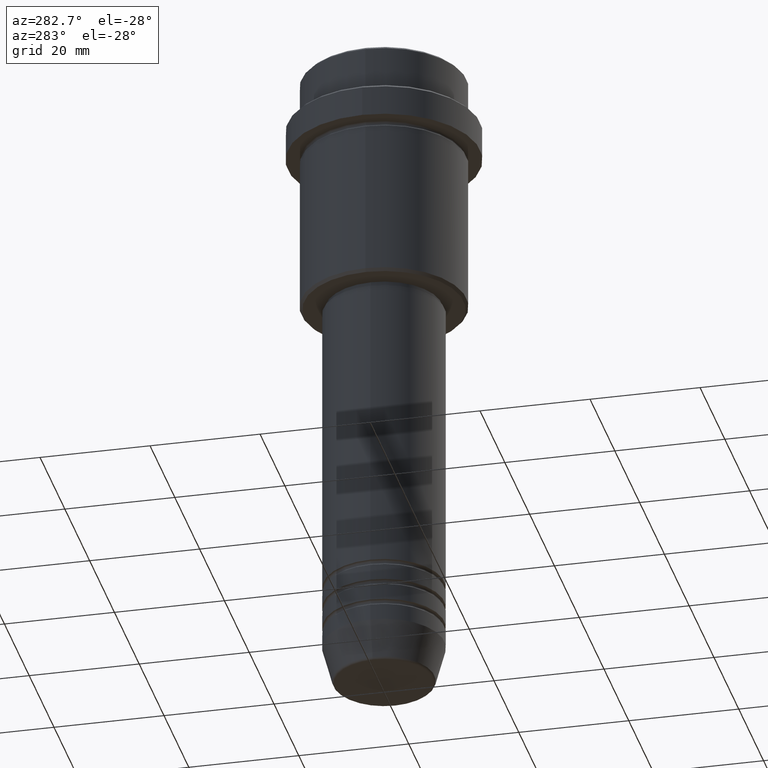
[diagram: clean part render]
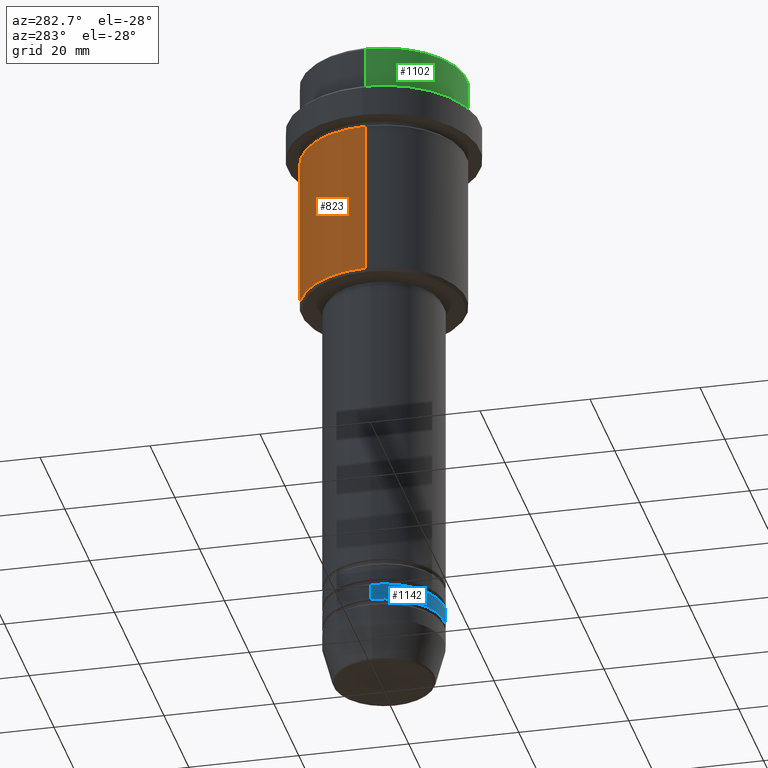
[diagram: same view with three faces highlighted in distinct colors, each labeled with its STEP entity id]
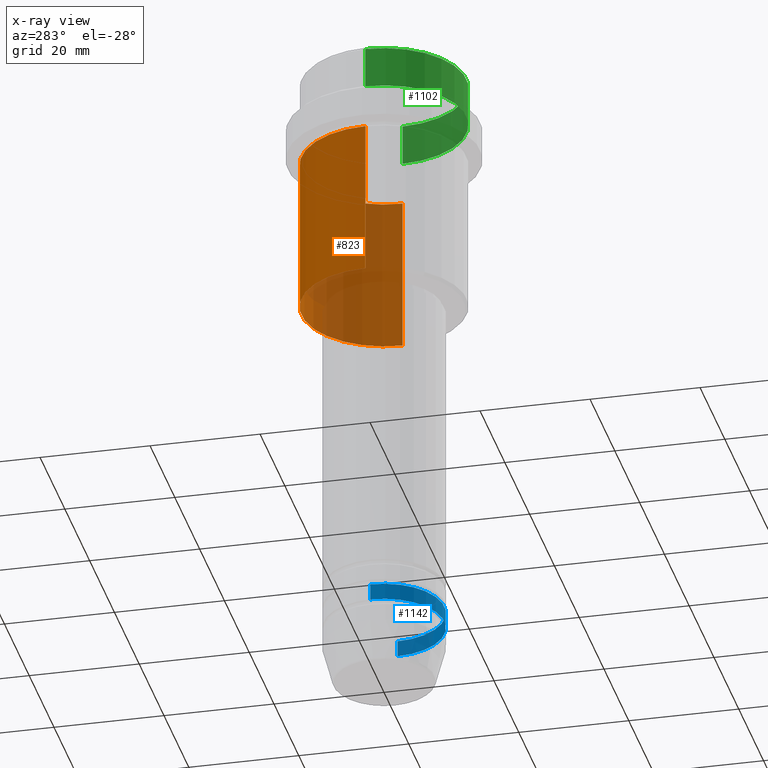
[diagram: x-ray of the same camera — body ghosted, the three highlighted faces saturated]
A machine part, auxiliary view with three faces highlighted in distinct colors.
The next image is the same camera in x-ray (body ghosted, the three faces saturated) — at least one of them is partly hidden behind the body in this view.
Their STEP definitions:

[orange] entity #823 — the highlighted cylindrical surface (partial cylindrical patch) has radius 15 mm, axis along (-0, -0, 1).
#44 = VERTEX_POINT ( 'NONE', #515 ) ;
#83 = CARTESIAN_POINT ( 'NONE',  ( 0.000000000000000000, 0.000000000000000000, 0.000000000000000000 ) ) ;
#87 = ORIENTED_EDGE ( 'NONE', *, *, #766, .F. ) ;
#105 = CARTESIAN_POINT ( 'NONE',  ( 15.00000000000000000, 0.000000000000000000, -44.50000000000001421 ) ) ;
#124 = AXIS2_PLACEMENT_3D ( 'NONE', #83, #1039, #1277 ) ;
#154 = CARTESIAN_POINT ( 'NONE',  ( 0.000000000000000000, 0.000000000000000000, -44.50000000000001421 ) ) ;
#185 = VECTOR ( 'NONE', #1313, 1000.000000000000000 ) ;
#230 = VERTEX_POINT ( 'NONE', #105 ) ;
#235 = AXIS2_PLACEMENT_3D ( 'NONE', #355, #247, #681 ) ;
#247 = DIRECTION ( 'NONE',  ( -0.000000000000000000, -0.000000000000000000, 1.000000000000000000 ) ) ;
#252 = DIRECTION ( 'NONE',  ( -1.000000000000000000, 0.000000000000000000, 0.000000000000000000 ) ) ;
#282 = CARTESIAN_POINT ( 'NONE',  ( 15.00000000000000000, 0.000000000000000000, 0.000000000000000000 ) ) ;
#324 = AXIS2_PLACEMENT_3D ( 'NONE', #154, #1029, #252 ) ;
#355 = CARTESIAN_POINT ( 'NONE',  ( 0.000000000000000000, 0.000000000000000000, -16.00000000000000000 ) ) ;
#402 = EDGE_LOOP ( 'NONE', ( #640, #1240, #87, #1253 ) ) ;
#412 = VERTEX_POINT ( 'NONE', #599 ) ;
#420 = EDGE_CURVE ( 'NONE', #230, #44, #739, .T. ) ;
#429 = CARTESIAN_POINT ( 'NONE',  ( -15.00000000000000000, 1.836970198721029589E-15, 0.000000000000000000 ) ) ;
#514 = CARTESIAN_POINT ( 'NONE',  ( -15.00000000000000355, 1.836970198721029983E-15, -16.00000000000000000 ) ) ;
#515 = CARTESIAN_POINT ( 'NONE',  ( 15.00000000000000178, 0.000000000000000000, -16.00000000000000000 ) ) ;
#599 = CARTESIAN_POINT ( 'NONE',  ( -15.00000000000000000, 1.836970198721029589E-15, -44.50000000000001421 ) ) ;
#640 = ORIENTED_EDGE ( 'NONE', *, *, #799, .T. ) ;
#655 = EDGE_CURVE ( 'NONE', #412, #1385, #1092, .T. ) ;
#681 = DIRECTION ( 'NONE',  ( 1.000000000000000000, 0.000000000000000000, 0.000000000000000000 ) ) ;
#739 = LINE ( 'NONE', #282, #1397 ) ;
#766 = EDGE_CURVE ( 'NONE', #44, #1385, #849, .T. ) ;
#799 = EDGE_CURVE ( 'NONE', #230, #412, #940, .T. ) ;
#818 = DIRECTION ( 'NONE',  ( -0.000000000000000000, -0.000000000000000000, 1.000000000000000000 ) ) ;
#823 = ADVANCED_FACE ( 'NONE', ( #1003 ), #837, .T. ) ;
#837 = CYLINDRICAL_SURFACE ( 'NONE', #124, 15.00000000000000000 ) ;
#849 = CIRCLE ( 'NONE', #235, 15.00000000000000178 ) ;
#940 = CIRCLE ( 'NONE', #324, 15.00000000000000000 ) ;
#1003 = FACE_OUTER_BOUND ( 'NONE', #402, .T. ) ;
#1029 = DIRECTION ( 'NONE',  ( -0.000000000000000000, -0.000000000000000000, 1.000000000000000000 ) ) ;
#1039 = DIRECTION ( 'NONE',  ( -0.000000000000000000, -0.000000000000000000, 1.000000000000000000 ) ) ;
#1092 = LINE ( 'NONE', #429, #185 ) ;
#1240 = ORIENTED_EDGE ( 'NONE', *, *, #655, .T. ) ;
#1253 = ORIENTED_EDGE ( 'NONE', *, *, #420, .F. ) ;
#1277 = DIRECTION ( 'NONE',  ( 1.000000000000000000, 0.000000000000000000, 0.000000000000000000 ) ) ;
#1313 = DIRECTION ( 'NONE',  ( -0.000000000000000000, -0.000000000000000000, 1.000000000000000000 ) ) ;
#1385 = VERTEX_POINT ( 'NONE', #514 ) ;
#1397 = VECTOR ( 'NONE', #818, 1000.000000000000000 ) ;

[blue] entity #1142 — the highlighted cylindrical surface (partial cylindrical patch) has radius 11 mm, axis along (-0, -0, 1).
#22 = FACE_OUTER_BOUND ( 'NONE', #662, .T. ) ;
#101 = CARTESIAN_POINT ( 'NONE',  ( 11.00000000000000000, 0.000000000000000000, -105.9999999999998721 ) ) ;
#127 = AXIS2_PLACEMENT_3D ( 'NONE', #1286, #196, #203 ) ;
#130 = DIRECTION ( 'NONE',  ( 1.000000000000000000, 0.000000000000000000, 0.000000000000000000 ) ) ;
#196 = DIRECTION ( 'NONE',  ( -0.000000000000000000, -0.000000000000000000, 1.000000000000000000 ) ) ;
#203 = DIRECTION ( 'NONE',  ( 1.000000000000000000, 0.000000000000000000, 0.000000000000000000 ) ) ;
#208 = CARTESIAN_POINT ( 'NONE',  ( -11.00000000000000000, 1.347111479062088405E-15, -105.9999999999998721 ) ) ;
#262 = VERTEX_POINT ( 'NONE', #208 ) ;
#306 = ORIENTED_EDGE ( 'NONE', *, *, #627, .F. ) ;
#311 = DIRECTION ( 'NONE',  ( -0.000000000000000000, -0.000000000000000000, 1.000000000000000000 ) ) ;
#352 = ORIENTED_EDGE ( 'NONE', *, *, #575, .F. ) ;
#423 = DIRECTION ( 'NONE',  ( -0.000000000000000000, -0.000000000000000000, 1.000000000000000000 ) ) ;
#467 = CARTESIAN_POINT ( 'NONE',  ( 0.000000000000000000, 0.000000000000000000, 0.000000000000000000 ) ) ;
#479 = AXIS2_PLACEMENT_3D ( 'NONE', #467, #556, #130 ) ;
#491 = VERTEX_POINT ( 'NONE', #1392 ) ;
#556 = DIRECTION ( 'NONE',  ( -0.000000000000000000, -0.000000000000000000, 1.000000000000000000 ) ) ;
#575 = EDGE_CURVE ( 'NONE', #1235, #262, #1298, .T. ) ;
#595 = VERTEX_POINT ( 'NONE', #101 ) ;
#627 = EDGE_CURVE ( 'NONE', #262, #595, #1398, .T. ) ;
#650 = DIRECTION ( 'NONE',  ( -0.000000000000000000, -0.000000000000000000, 1.000000000000000000 ) ) ;
#657 = CARTESIAN_POINT ( 'NONE',  ( 11.00000000000000000, 0.000000000000000000, 0.000000000000000000 ) ) ;
#662 = EDGE_LOOP ( 'NONE', ( #352, #1027, #790, #306 ) ) ;
#687 = AXIS2_PLACEMENT_3D ( 'NONE', #1209, #423, #971 ) ;
#688 = VECTOR ( 'NONE', #650, 1000.000000000000000 ) ;
#745 = CARTESIAN_POINT ( 'NONE',  ( -11.00000000000000000, 1.347111479062088405E-15, 0.000000000000000000 ) ) ;
#790 = ORIENTED_EDGE ( 'NONE', *, *, #1050, .T. ) ;
#952 = CARTESIAN_POINT ( 'NONE',  ( -11.00000000000000000, 1.347111479062088405E-15, -108.9999999999998721 ) ) ;
#971 = DIRECTION ( 'NONE',  ( 1.000000000000000000, 0.000000000000000000, 0.000000000000000000 ) ) ;
#977 = LINE ( 'NONE', #657, #688 ) ;
#1027 = ORIENTED_EDGE ( 'NONE', *, *, #1283, .T. ) ;
#1050 = EDGE_CURVE ( 'NONE', #491, #595, #977, .T. ) ;
#1112 = CYLINDRICAL_SURFACE ( 'NONE', #479, 11.00000000000000000 ) ;
#1142 = ADVANCED_FACE ( 'NONE', ( #22 ), #1112, .T. ) ;
#1172 = VECTOR ( 'NONE', #311, 1000.000000000000000 ) ;
#1198 = CIRCLE ( 'NONE', #127, 11.00000000000000000 ) ;
#1209 = CARTESIAN_POINT ( 'NONE',  ( 0.000000000000000000, 0.000000000000000000, -105.9999999999998721 ) ) ;
#1235 = VERTEX_POINT ( 'NONE', #952 ) ;
#1283 = EDGE_CURVE ( 'NONE', #1235, #491, #1198, .T. ) ;
#1286 = CARTESIAN_POINT ( 'NONE',  ( 0.000000000000000000, 0.000000000000000000, -108.9999999999998721 ) ) ;
#1298 = LINE ( 'NONE', #745, #1172 ) ;
#1392 = CARTESIAN_POINT ( 'NONE',  ( 11.00000000000000000, 0.000000000000000000, -108.9999999999998721 ) ) ;
#1398 = CIRCLE ( 'NONE', #687, 11.00000000000000000 ) ;

[green] entity #1102 — the highlighted cylindrical surface (partial cylindrical patch) has radius 15 mm, axis along (-0, -0, 1).
#73 = ORIENTED_EDGE ( 'NONE', *, *, #113, .F. ) ;
#113 = EDGE_CURVE ( 'NONE', #167, #1384, #1099, .T. ) ;
#114 = FACE_OUTER_BOUND ( 'NONE', #357, .T. ) ;
#123 = DIRECTION ( 'NONE',  ( -0.000000000000000000, -0.000000000000000000, 1.000000000000000000 ) ) ;
#128 = VERTEX_POINT ( 'NONE', #973 ) ;
#167 = VERTEX_POINT ( 'NONE', #439 ) ;
#187 = EDGE_CURVE ( 'NONE', #128, #1384, #519, .T. ) ;
#205 = CARTESIAN_POINT ( 'NONE',  ( 15.00000000000000000, 0.000000000000000000, 0.000000000000000000 ) ) ;
#229 = DIRECTION ( 'NONE',  ( -0.000000000000000000, -0.000000000000000000, 1.000000000000000000 ) ) ;
#299 = VECTOR ( 'NONE', #123, 1000.000000000000000 ) ;
#325 = DIRECTION ( 'NONE',  ( -0.000000000000000000, -0.000000000000000000, 1.000000000000000000 ) ) ;
#341 = CARTESIAN_POINT ( 'NONE',  ( -15.00000000000000000, 1.836970198721029589E-15, 0.000000000000000000 ) ) ;
#357 = EDGE_LOOP ( 'NONE', ( #73, #574, #362, #1001 ) ) ;
#362 = ORIENTED_EDGE ( 'NONE', *, *, #558, .T. ) ;
#439 = CARTESIAN_POINT ( 'NONE',  ( -15.00000000000000000, 1.836970198721029589E-15, -7.999999999999998224 ) ) ;
#519 = CIRCLE ( 'NONE', #1081, 15.00000000000000000 ) ;
#523 = CIRCLE ( 'NONE', #1241, 15.00000000000000000 ) ;
#528 = DIRECTION ( 'NONE',  ( 1.000000000000000000, 0.000000000000000000, 0.000000000000000000 ) ) ;
#535 = LINE ( 'NONE', #205, #299 ) ;
#558 = EDGE_CURVE ( 'NONE', #1046, #128, #535, .T. ) ;
#574 = ORIENTED_EDGE ( 'NONE', *, *, #609, .T. ) ;
#609 = EDGE_CURVE ( 'NONE', #167, #1046, #523, .T. ) ;
#634 = CARTESIAN_POINT ( 'NONE',  ( 0.000000000000000000, 0.000000000000000000, -7.999999999999998224 ) ) ;
#668 = AXIS2_PLACEMENT_3D ( 'NONE', #984, #325, #1180 ) ;
#821 = VECTOR ( 'NONE', #229, 1000.000000000000000 ) ;
#887 = CARTESIAN_POINT ( 'NONE',  ( 15.00000000000000000, 0.000000000000000000, -7.999999999999998224 ) ) ;
#894 = CARTESIAN_POINT ( 'NONE',  ( 0.000000000000000000, 0.000000000000000000, -0.4999999999999970024 ) ) ;
#973 = CARTESIAN_POINT ( 'NONE',  ( 15.00000000000000000, 0.000000000000000000, -0.4999999999999970024 ) ) ;
#984 = CARTESIAN_POINT ( 'NONE',  ( 0.000000000000000000, 0.000000000000000000, 0.000000000000000000 ) ) ;
#1001 = ORIENTED_EDGE ( 'NONE', *, *, #187, .T. ) ;
#1046 = VERTEX_POINT ( 'NONE', #887 ) ;
#1065 = CARTESIAN_POINT ( 'NONE',  ( -15.00000000000000000, 1.836970198721029589E-15, -0.4999999999999970024 ) ) ;
#1081 = AXIS2_PLACEMENT_3D ( 'NONE', #894, #1094, #1410 ) ;
#1094 = DIRECTION ( 'NONE',  ( 0.000000000000000000, 0.000000000000000000, -1.000000000000000000 ) ) ;
#1099 = LINE ( 'NONE', #341, #821 ) ;
#1102 = ADVANCED_FACE ( 'NONE', ( #114 ), #1310, .T. ) ;
#1180 = DIRECTION ( 'NONE',  ( 1.000000000000000000, 0.000000000000000000, 0.000000000000000000 ) ) ;
#1241 = AXIS2_PLACEMENT_3D ( 'NONE', #634, #1409, #528 ) ;
#1310 = CYLINDRICAL_SURFACE ( 'NONE', #668, 15.00000000000000000 ) ;
#1384 = VERTEX_POINT ( 'NONE', #1065 ) ;
#1409 = DIRECTION ( 'NONE',  ( -0.000000000000000000, -0.000000000000000000, 1.000000000000000000 ) ) ;
#1410 = DIRECTION ( 'NONE',  ( 1.000000000000000000, 0.000000000000000000, 0.000000000000000000 ) ) ;